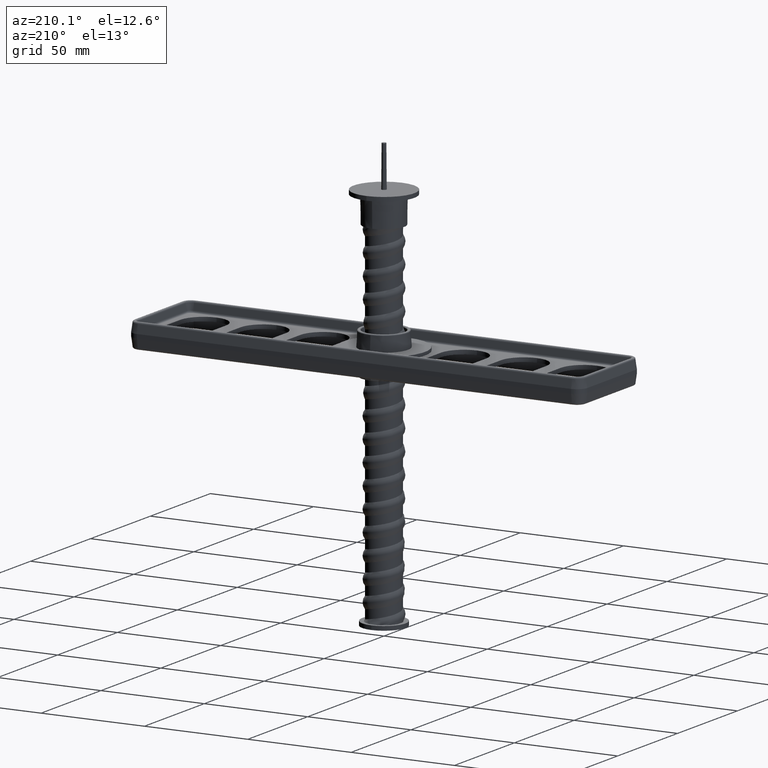
[diagram: clean part render]
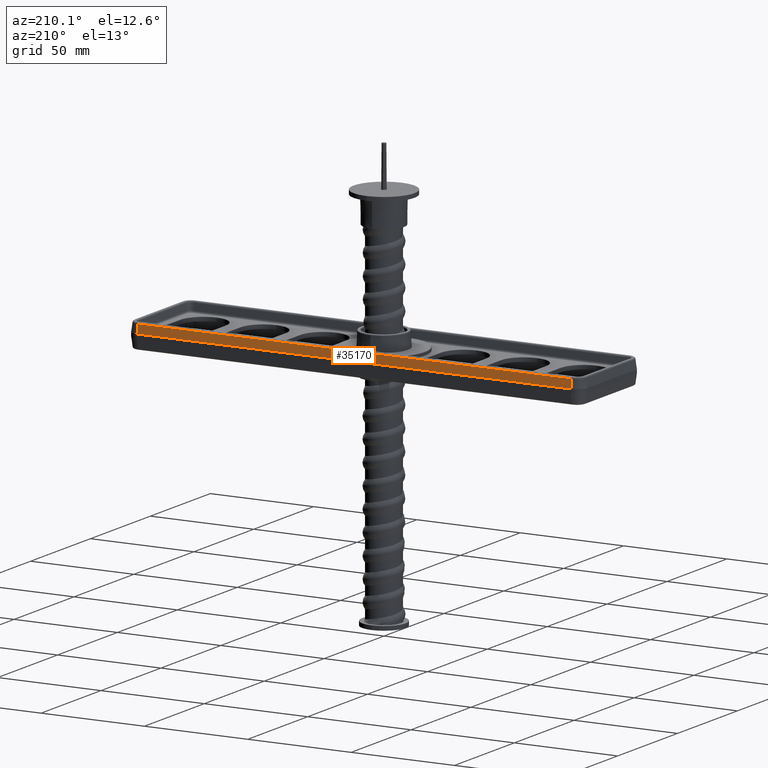
[diagram: same view with one face highlighted and labeled with its STEP entity id]
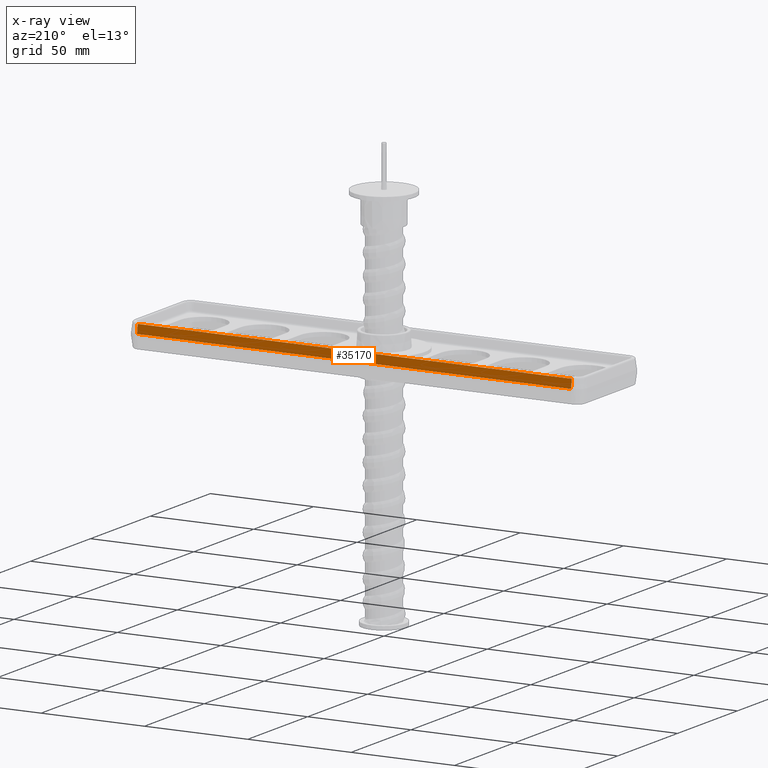
[diagram: x-ray of the same camera — body ghosted, the highlighted face saturated]
A machine part, auxiliary view. The second image highlights one B-rep face of the part: STEP entity #35170.
The next image is the same camera in x-ray: the body ghosted, the highlighted face saturated — about 0% of this face is hidden behind the body in this view.
In plain terms, the highlighted planar face has unit normal (0, -0.9903, -0.1392).
Its self-contained STEP definition (entity closure, byte-faithful):
#191 = EDGE_CURVE ( 'NONE', #30759, #30851, #8593, .T. ) ;
#329 = VECTOR ( 'NONE', #10887, 999.9999999999998863 ) ;
#1365 = LINE ( 'NONE', #14166, #329 ) ;
#3590 = LINE ( 'NONE', #41263, #4628 ) ;
#4628 = VECTOR ( 'NONE', #18492, 1000.000000000000000 ) ;
#8271 = VECTOR ( 'NONE', #38703, 1000.000000000000000 ) ;
#8593 = LINE ( 'NONE', #16600, #16258 ) ;
#8627 = EDGE_CURVE ( 'NONE', #31153, #30851, #3590, .T. ) ;
#9242 = VERTEX_POINT ( 'NONE', #26153 ) ;
#9564 = ORIENTED_EDGE ( 'NONE', *, *, #191, .T. ) ;
#9891 = ORIENTED_EDGE ( 'NONE', *, *, #40402, .T. ) ;
#10033 = DIRECTION ( 'NONE',  ( -1.012298032875162363E-16, 0.9902680687415702510, 0.1391731009600665203 ) ) ;
#10887 = DIRECTION ( 'NONE',  ( -1.012298032875162363E-16, 0.9902680687415702510, 0.1391731009600665203 ) ) ;
#11519 = AXIS2_PLACEMENT_3D ( 'NONE', #13978, #40585, #21103 ) ;
#12434 = FACE_OUTER_BOUND ( 'NONE', #25911, .T. ) ;
#13978 = CARTESIAN_POINT ( 'NONE',  ( 105.0000000000000000, 5.210463401687986718, -24.40825795904290274 ) ) ;
#14166 = CARTESIAN_POINT ( 'NONE',  ( 105.0000000000000000, 5.210463401687986718, -24.40825795904290274 ) ) ;
#16258 = VECTOR ( 'NONE', #10033, 999.9999999999998863 ) ;
#16600 = CARTESIAN_POINT ( 'NONE',  ( -105.0000000000000000, 5.210463401687986718, -24.40825795904287787 ) ) ;
#18492 = DIRECTION ( 'NONE',  ( -1.000000000000000000, 0.0000000000000000000, 1.156482317317871478E-16 ) ) ;
#19154 = CARTESIAN_POINT ( 'NONE',  ( -105.0000000000000000, 5.210463401687986718, -24.40825795904287787 ) ) ;
#21103 = DIRECTION ( 'NONE',  ( 0.0000000000000000000, -0.9902680687415701399, -0.1391731009600664926 ) ) ;
#22498 = CARTESIAN_POINT ( 'NONE',  ( 105.0000000000000000, 1.000000000000000888, -25.00000000000000711 ) ) ;
#24725 = ORIENTED_EDGE ( 'NONE', *, *, #27062, .F. ) ;
#25911 = EDGE_LOOP ( 'NONE', ( #24725, #9891, #9564, #34939 ) ) ;
#26153 = CARTESIAN_POINT ( 'NONE',  ( 105.0000000000000000, 1.000000000000000888, -25.00000000000000000 ) ) ;
#27062 = EDGE_CURVE ( 'NONE', #9242, #31153, #1365, .T. ) ;
#28672 = LINE ( 'NONE', #22498, #8271 ) ;
#30759 = VERTEX_POINT ( 'NONE', #38649 ) ;
#30801 = PLANE ( 'NONE',  #11519 ) ;
#30851 = VERTEX_POINT ( 'NONE', #19154 ) ;
#31153 = VERTEX_POINT ( 'NONE', #36227 ) ;
#34939 = ORIENTED_EDGE ( 'NONE', *, *, #8627, .F. ) ;
#35170 = ADVANCED_FACE ( 'NONE', ( #12434 ), #30801, .F. ) ;
#36227 = CARTESIAN_POINT ( 'NONE',  ( 105.0000000000000000, 5.210463401687986718, -24.40825795904290274 ) ) ;
#38649 = CARTESIAN_POINT ( 'NONE',  ( -105.0000000000000000, 1.000000000000000888, -24.99999999999998579 ) ) ;
#38703 = DIRECTION ( 'NONE',  ( -1.000000000000000000, 0.0000000000000000000, 1.156482317317871478E-16 ) ) ;
#40402 = EDGE_CURVE ( 'NONE', #9242, #30759, #28672, .T. ) ;
#40585 = DIRECTION ( 'NONE',  ( 1.145227510904144327E-16, -0.1391731009600664926, 0.9902680687415701399 ) ) ;
#41263 = CARTESIAN_POINT ( 'NONE',  ( 105.0000000000000000, 5.210463401687986718, -24.40825795904290274 ) ) ;